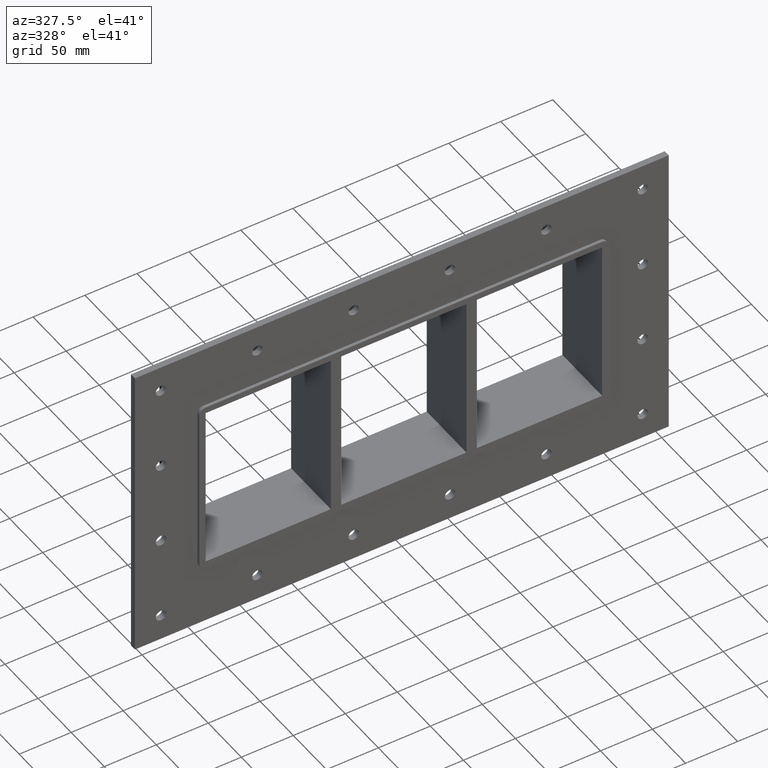
[diagram: clean part render]
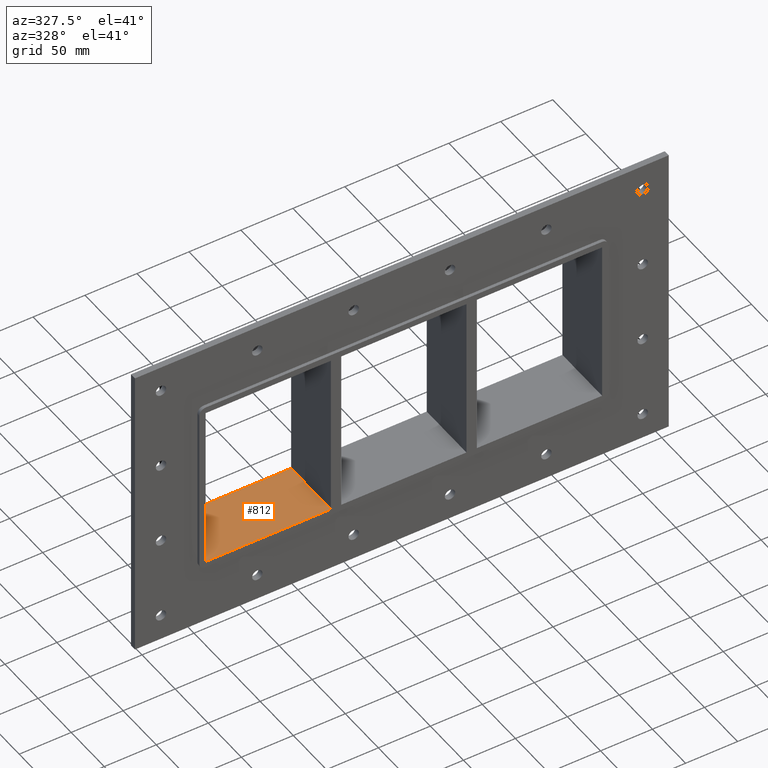
[diagram: same view with one face highlighted and labeled with its STEP entity id]
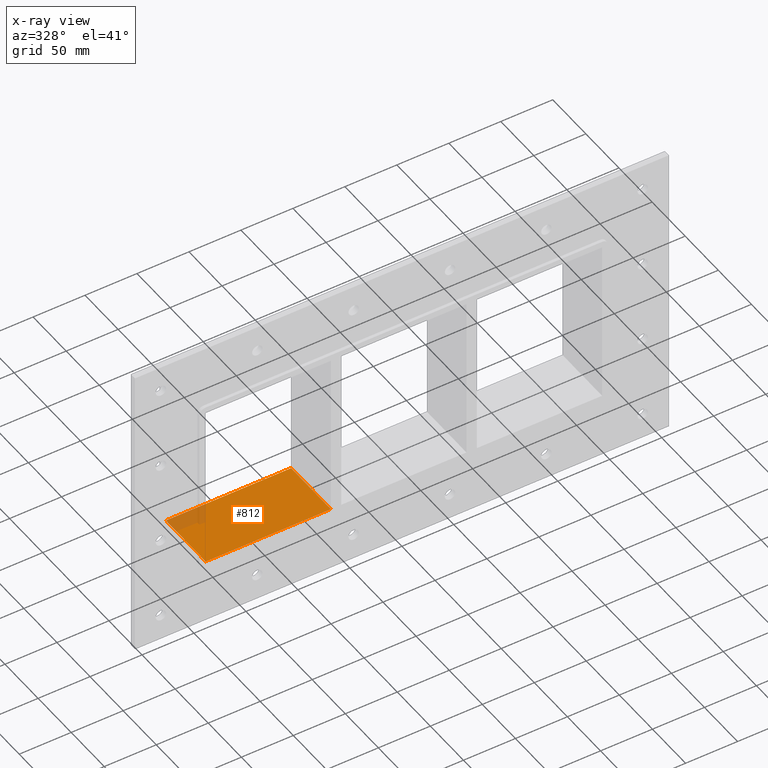
[diagram: x-ray of the same camera — body ghosted, the highlighted face saturated]
A machine part, auxiliary view. The second image highlights one B-rep face of the part: STEP entity #812.
The next image is the same camera in x-ray: the body ghosted, the highlighted face saturated — about 8% of this face is hidden behind the body in this view.
In plain terms, the highlighted planar face has unit normal (0, 0, -1).
Its self-contained STEP definition (entity closure, byte-faithful):
#725=CARTESIAN_POINT('',(-70.250000000001407,-3.0,-79.750000000000014));
#726=VERTEX_POINT('',#725);
#743=CARTESIAN_POINT('',(-70.250000000001407,57.0,-79.750000000000014));
#744=VERTEX_POINT('',#743);
#751=CARTESIAN_POINT('',(-70.250000000001407,-3.0,-79.750000000000014));
#752=DIRECTION('',(0.0,1.0,0.0));
#753=VECTOR('',#752,60.000000000000007);
#754=LINE('',#751,#753);
#755=EDGE_CURVE('',#726,#744,#754,.T.);
#782=CARTESIAN_POINT('',(190.75000000000011,0.0,-79.750000000000014));
#783=DIRECTION('',(0.0,0.0,-1.0));
#784=DIRECTION('',(-1.0,0.0,0.0));
#785=AXIS2_PLACEMENT_3D('',#782,#783,#784);
#786=PLANE('',#785);
#787=ORIENTED_EDGE('',*,*,#755,.T.);
#788=CARTESIAN_POINT('',(-190.75000000000011,57.0,-79.750000000000014));
#789=VERTEX_POINT('',#788);
#790=CARTESIAN_POINT('',(-190.75000000000011,57.0,-79.750000000000014));
#791=DIRECTION('',(1.0,0.0,0.0));
#792=VECTOR('',#791,120.49999999999872);
#793=LINE('',#790,#792);
#794=EDGE_CURVE('',#789,#744,#793,.T.);
#795=ORIENTED_EDGE('',*,*,#794,.F.);
#796=CARTESIAN_POINT('',(-190.75000000000011,-3.0,-79.750000000000014));
#797=VERTEX_POINT('',#796);
#798=CARTESIAN_POINT('',(-190.75000000000006,-3.0,-79.750000000000014));
#799=DIRECTION('',(0.0,1.0,0.0));
#800=VECTOR('',#799,60.0);
#801=LINE('',#798,#800);
#802=EDGE_CURVE('',#797,#789,#801,.T.);
#803=ORIENTED_EDGE('',*,*,#802,.F.);
#804=CARTESIAN_POINT('',(-70.250000000001393,-3.0,-79.750000000000014));
#805=DIRECTION('',(-1.0,0.0,0.0));
#806=VECTOR('',#805,120.49999999999872);
#807=LINE('',#804,#806);
#808=EDGE_CURVE('',#726,#797,#807,.T.);
#809=ORIENTED_EDGE('',*,*,#808,.F.);
#810=EDGE_LOOP('',(#787,#795,#803,#809));
#811=FACE_OUTER_BOUND('',#810,.T.);
#812=ADVANCED_FACE('',(#811),#786,.F.);